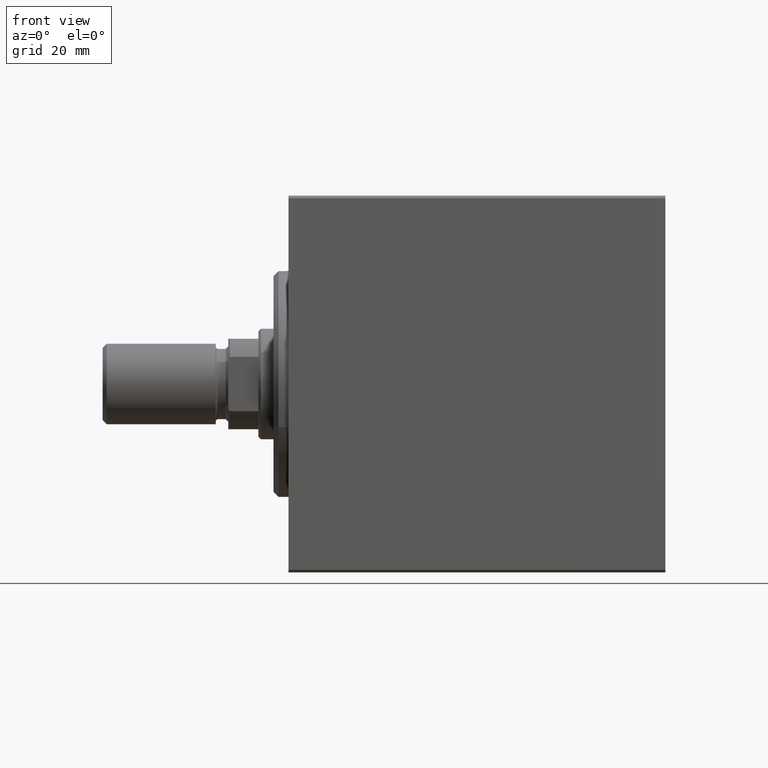
[diagram: clean part render]
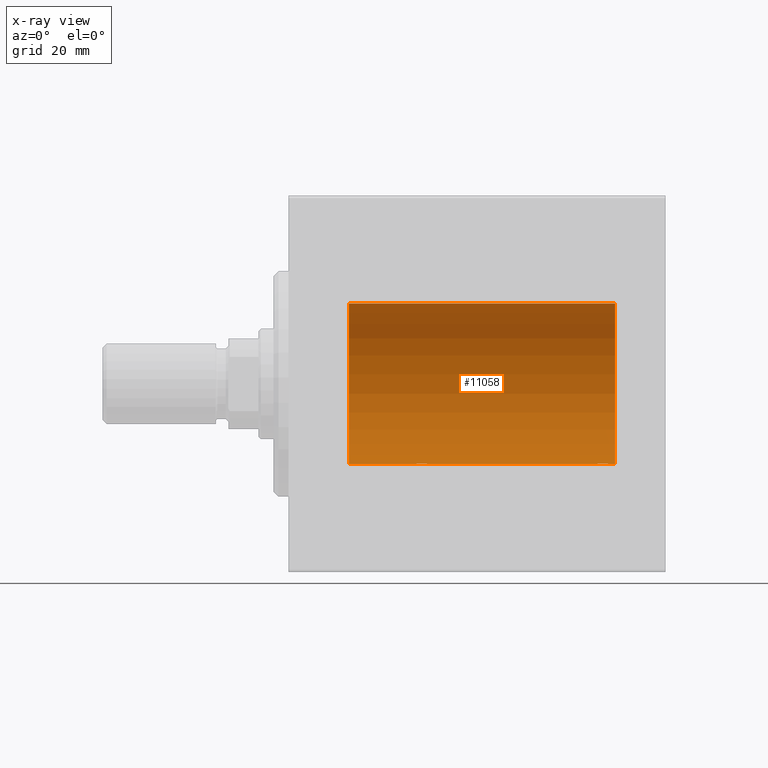
[diagram: x-ray — body ghosted, one internal face saturated and labeled with its STEP entity id]
A machine part, front view, then the same camera in x-ray: the body is ghosted and one INTERNAL B-rep face — a face not visible from any outside direction — is saturated and labeled: STEP entity #11058.
In plain terms, the highlighted cylindrical surface (partial cylindrical patch) has radius 16 mm, axis along (-1, -0, -0).
Its self-contained STEP definition (entity closure, byte-faithful):
#201 = CARTESIAN_POINT ( 'NONE',  ( 60.56388673317934490, 0.5181437283162021457, -15.99211983514074653 ) ) ;
#418 = CARTESIAN_POINT ( 'NONE',  ( 60.90948495147899422, 1.219564485341763760, -15.95382484008323054 ) ) ;
#618 = CARTESIAN_POINT ( 'NONE',  ( 27.01913097710113121, 1.935876924222081907, -15.88247600692093187 ) ) ;
#861 = CARTESIAN_POINT ( 'NONE',  ( 63.71967657442274913, 1.590393755196015002, -15.92092783521423272 ) ) ;
#1050 = VECTOR ( 'NONE', #21671, 1000.000000000000000 ) ;
#1058 = CARTESIAN_POINT ( 'NONE',  ( 24.56388673317935556, 0.5181437283162043661, -15.99211983514074653 ) ) ;
#1869 = AXIS2_PLACEMENT_3D ( 'NONE', #37067, #33923, #13248 ) ;
#1878 = B_SPLINE_CURVE_WITH_KNOTS ( 'NONE', 3,
 ( #27175, #40888, #10109, #201, #34371, #34799, #38624, #418, #13692, #10546, #7616, #4234, #34583, #28271, #24913, #3570, #17952, #10763, #10980, #861, #31436, #24467, #38394, #24247, #17726, #7837, #41335, #44464, #17280, #4005 ),
 .UNSPECIFIED., .F., .F.,
 ( 4, 2, 2, 2, 2, 2, 2, 2, 2, 2, 2, 2, 2, 2, 4 ),
 ( 1.991932713717143819E-18, 0.0003911894522871088727, 0.0007823789045742156854, 0.001173568356861322227, 0.001564757809148428769, 0.002347136713722657465, 0.003129515618296885727, 0.003520705070584010266, 0.003911894522871134372, 0.004303083975158258911, 0.004694273427445384318, 0.005085462879732508858, 0.005476652332019634264, 0.005867841784306758804, 0.006259031236593884211 ),
 .UNSPECIFIED. ) ;
#3551 = CARTESIAN_POINT ( 'NONE',  ( 26.76251583007899271, 1.987008272775795614, -15.87616016863256263 ) ) ;
#3570 = CARTESIAN_POINT ( 'NONE',  ( 63.01913097710111344, 1.935876924222080797, -15.88247600692093187 ) ) ;
#4005 = CARTESIAN_POINT ( 'NONE',  ( 64.50000000000000000, 1.959434851248285101E-15, -16.00000000000000000 ) ) ;
#4213 = CARTESIAN_POINT ( 'NONE',  ( 24.70286585251780664, 0.8874076679346751817, -15.97583181162461408 ) ) ;
#4234 = CARTESIAN_POINT ( 'NONE',  ( 61.97468243540594557, 1.947280337074165368, -15.88137861827787134 ) ) ;
#4271 = B_SPLINE_CURVE_WITH_KNOTS ( 'NONE', 3,
 ( #18248, #38919, #8133, #1058, #41961, #4213, #41532, #20644, #34349, #10527, #24890, #11188, #17931, #14328, #3551, #618, #38604, #21067, #24009, #31416, #31848, #37716, #14771, #24229, #41741, #28476, #10744, #41315, #31187, #31633 ),
 .UNSPECIFIED., .F., .F.,
 ( 4, 2, 2, 2, 2, 2, 2, 2, 2, 2, 2, 2, 2, 2, 4 ),
 ( 6.061338176617876434E-19, 0.0003911894522871146732, 0.0007823789045742288043, 0.001173568356861343261, 0.001564757809148457609, 0.002347136713722686955, 0.003129515618296916518, 0.003520705070584036721, 0.003911894522871156923, 0.004303083975158277993, 0.004694273427445398196, 0.005085462879732518399, 0.005476652332019638601, 0.005867841784306759671, 0.006259031236593879007 ),
 .UNSPECIFIED. ) ;
#4818 = CARTESIAN_POINT ( 'NONE',  ( 65.00000000000000000, 1.959434878635765131E-15, -16.00000000000000000 ) ) ;
#4999 = LINE ( 'NONE', #18715, #7482 ) ;
#5273 = AXIS2_PLACEMENT_3D ( 'NONE', #35134, #24134, #24797 ) ;
#5651 = ORIENTED_EDGE ( 'NONE', *, *, #20408, .T. ) ;
#7241 = VERTEX_POINT ( 'NONE', #24167 ) ;
#7313 = CARTESIAN_POINT ( 'NONE',  ( 24.50000000000000000, -2.103178745110437193E-15, -16.00000000000000000 ) ) ;
#7482 = VECTOR ( 'NONE', #42746, 1000.000000000000000 ) ;
#7523 = VERTEX_POINT ( 'NONE', #16711 ) ;
#7616 = CARTESIAN_POINT ( 'NONE',  ( 61.49340818440418843, 1.747750603376301060, -15.90457341008072767 ) ) ;
#7837 = CARTESIAN_POINT ( 'NONE',  ( 64.39783726498897920, 0.6445079780200581032, -15.98747331501412816 ) ) ;
#8133 = CARTESIAN_POINT ( 'NONE',  ( 24.51299475991587329, 0.2623312429553279479, -15.99836091803360105 ) ) ;
#9092 = VERTEX_POINT ( 'NONE', #28705 ) ;
#9551 = EDGE_CURVE ( 'NONE', #30642, #9092, #4271, .T. ) ;
#10109 = CARTESIAN_POINT ( 'NONE',  ( 60.51299475991586263, 0.2623312429553253389, -15.99836091803360283 ) ) ;
#10183 = ORIENTED_EDGE ( 'NONE', *, *, #25965, .F. ) ;
#10527 = CARTESIAN_POINT ( 'NONE',  ( 25.27043888260214999, 1.598790766515152173, -15.92099550861380486 ) ) ;
#10546 = CARTESIAN_POINT ( 'NONE',  ( 61.27043888260216420, 1.598790766515151063, -15.92099550861380841 ) ) ;
#10744 = CARTESIAN_POINT ( 'NONE',  ( 28.43569052926130070, 0.5198215460038754232, -15.99206840425679310 ) ) ;
#10763 = CARTESIAN_POINT ( 'NONE',  ( 63.38617757057270552, 1.797743958659260510, -15.89876304682112362 ) ) ;
#10980 = CARTESIAN_POINT ( 'NONE',  ( 63.50311247035038065, 1.735145127817755650, -15.90580292899658055 ) ) ;
#11058 = ADVANCED_FACE ( 'NONE', ( #41872 ), #20984, .F. ) ;
#11188 = CARTESIAN_POINT ( 'NONE',  ( 25.97468243540595978, 1.947280337074166923, -15.88137861827786779 ) ) ;
#12459 = VERTEX_POINT ( 'NONE', #33226 ) ;
#13248 = DIRECTION ( 'NONE',  ( 0.000000000000000000, 0.000000000000000000, 1.000000000000000000 ) ) ;
#13395 = VERTEX_POINT ( 'NONE', #44057 ) ;
#13423 = AXIS2_PLACEMENT_3D ( 'NONE', #22825, #36530, #33160 ) ;
#13692 = CARTESIAN_POINT ( 'NONE',  ( 60.99389287531753467, 1.322357532253821688, -15.94553003295876970 ) ) ;
#14106 = EDGE_CURVE ( 'NONE', #7241, #13395, #4999, .T. ) ;
#14328 = CARTESIAN_POINT ( 'NONE',  ( 26.62985308350499025, 2.000047931387146871, -15.87450182760080253 ) ) ;
#14771 = CARTESIAN_POINT ( 'NONE',  ( 28.09001528100123224, 1.220169175415120932, -15.95377581882983797 ) ) ;
#14816 = EDGE_CURVE ( 'NONE', #30642, #36165, #28633, .T. ) ;
#15878 = EDGE_CURVE ( 'NONE', #7523, #12459, #25020, .T. ) ;
#16711 = CARTESIAN_POINT ( 'NONE',  ( 65.00000000000000000, 1.959434878635765131E-15, -16.00000000000000000 ) ) ;
#17280 = CARTESIAN_POINT ( 'NONE',  ( 64.49999999999997158, 0.1305944228192322254, -15.99999999999999289 ) ) ;
#17644 = DIRECTION ( 'NONE',  ( -1.000000000000000000, -0.000000000000000000, -0.000000000000000000 ) ) ;
#17726 = CARTESIAN_POINT ( 'NONE',  ( 64.29749928605036757, 0.8866640484200128958, -15.97587307151817804 ) ) ;
#17931 = CARTESIAN_POINT ( 'NONE',  ( 26.23808537237744787, 1.999903730784159617, -15.87451999516785861 ) ) ;
#17952 = CARTESIAN_POINT ( 'NONE',  ( 63.14386968033014114, 1.898058445420889750, -15.88709929148890510 ) ) ;
#18248 = CARTESIAN_POINT ( 'NONE',  ( 24.50000000000000000, -2.103178745110437193E-15, -16.00000000000000000 ) ) ;
#18485 = ORIENTED_EDGE ( 'NONE', *, *, #20371, .T. ) ;
#18715 = CARTESIAN_POINT ( 'NONE',  ( 65.00000000000000000, 0.000000000000000000, 16.00000000000000000 ) ) ;
#18802 = ORIENTED_EDGE ( 'NONE', *, *, #9551, .T. ) ;
#19946 = CARTESIAN_POINT ( 'NONE',  ( 60.49999999999999289, -9.573340169032840992E-15, -16.00000000000000000 ) ) ;
#20371 = EDGE_CURVE ( 'NONE', #13395, #36165, #21240, .T. ) ;
#20408 = EDGE_CURVE ( 'NONE', #24640, #12459, #1878, .T. ) ;
#20644 = CARTESIAN_POINT ( 'NONE',  ( 24.90948495147901554, 1.219564485341768645, -15.95382484008323409 ) ) ;
#20984 = CYLINDRICAL_SURFACE ( 'NONE', #5273, 16.00000000000000000 ) ;
#21010 = CARTESIAN_POINT ( 'NONE',  ( 65.00000000000000000, 1.959434878635765131E-15, -16.00000000000000000 ) ) ;
#21067 = CARTESIAN_POINT ( 'NONE',  ( 27.38617757057268420, 1.797743958659262731, -15.89876304682111652 ) ) ;
#21240 = CIRCLE ( 'NONE', #1869, 16.00000000000000000 ) ;
#21671 = DIRECTION ( 'NONE',  ( -1.000000000000000000, -0.000000000000000000, -0.000000000000000000 ) ) ;
#21807 = EDGE_CURVE ( 'NONE', #7241, #7523, #29240, .T. ) ;
#22097 = CARTESIAN_POINT ( 'NONE',  ( 65.00000000000000000, 1.959434878635765131E-15, -16.00000000000000000 ) ) ;
#22825 = CARTESIAN_POINT ( 'NONE',  ( 65.00000000000000000, 0.000000000000000000, 0.000000000000000000 ) ) ;
#24009 = CARTESIAN_POINT ( 'NONE',  ( 27.50311247035038775, 1.735145127817748323, -15.90580292899658410 ) ) ;
#24134 = DIRECTION ( 'NONE',  ( -1.000000000000000000, -0.000000000000000000, -0.000000000000000000 ) ) ;
#24167 = CARTESIAN_POINT ( 'NONE',  ( 65.00000000000000000, 0.000000000000000000, 16.00000000000000000 ) ) ;
#24229 = CARTESIAN_POINT ( 'NONE',  ( 28.23482670674955486, 1.003662148334367954, -15.96885838080211073 ) ) ;
#24247 = CARTESIAN_POINT ( 'NONE',  ( 64.23482670674952999, 1.003662148334373283, -15.96885838080210362 ) ) ;
#24383 = LINE ( 'NONE', #21010, #38631 ) ;
#24467 = CARTESIAN_POINT ( 'NONE',  ( 64.00737160312429808, 1.321075116345888256, -15.94564302722882232 ) ) ;
#24640 = VERTEX_POINT ( 'NONE', #19946 ) ;
#24797 = DIRECTION ( 'NONE',  ( 0.000000000000000000, 0.000000000000000000, 1.000000000000000000 ) ) ;
#24890 = CARTESIAN_POINT ( 'NONE',  ( 25.49340818440419199, 1.747750603376302614, -15.90457341008072412 ) ) ;
#24913 = CARTESIAN_POINT ( 'NONE',  ( 62.76251583007899626, 1.987008272775793838, -15.87616016863256263 ) ) ;
#25020 = LINE ( 'NONE', #22097, #27620 ) ;
#25965 = EDGE_CURVE ( 'NONE', #24640, #9092, #24383, .T. ) ;
#27175 = CARTESIAN_POINT ( 'NONE',  ( 60.49999999999999289, -9.573340169032840992E-15, -16.00000000000000000 ) ) ;
#27620 = VECTOR ( 'NONE', #32875, 1000.000000000000000 ) ;
#28231 = ORIENTED_EDGE ( 'NONE', *, *, #14106, .T. ) ;
#28271 = CARTESIAN_POINT ( 'NONE',  ( 62.62985308350498315, 2.000047931387145983, -15.87450182760079898 ) ) ;
#28476 = CARTESIAN_POINT ( 'NONE',  ( 28.39783726498895433, 0.6445079780200565489, -15.98747331501412106 ) ) ;
#28633 = LINE ( 'NONE', #4818, #1050 ) ;
#28705 = CARTESIAN_POINT ( 'NONE',  ( 28.49999999999999645, 1.959434851238818770E-15, -16.00000000000000000 ) ) ;
#29240 = CIRCLE ( 'NONE', #13423, 16.00000000000000000 ) ;
#29515 = ORIENTED_EDGE ( 'NONE', *, *, #14816, .F. ) ;
#30642 = VERTEX_POINT ( 'NONE', #7313 ) ;
#31187 = CARTESIAN_POINT ( 'NONE',  ( 28.49999999999999645, 0.1305944228192321699, -16.00000000000000000 ) ) ;
#31416 = CARTESIAN_POINT ( 'NONE',  ( 27.71967657442277400, 1.590393755196007008, -15.92092783521424337 ) ) ;
#31436 = CARTESIAN_POINT ( 'NONE',  ( 63.82075824828930877, 1.507649250492136606, -15.92908549642226745 ) ) ;
#31633 = CARTESIAN_POINT ( 'NONE',  ( 28.49999999999999645, 1.959434851238818770E-15, -16.00000000000000000 ) ) ;
#31824 = CARTESIAN_POINT ( 'NONE',  ( 11.99999999999999645, 1.959434878635765131E-15, -16.00000000000000000 ) ) ;
#31848 = CARTESIAN_POINT ( 'NONE',  ( 27.82075824828932653, 1.507649250492136606, -15.92908549642227101 ) ) ;
#32875 = DIRECTION ( 'NONE',  ( -1.000000000000000000, -0.000000000000000000, -0.000000000000000000 ) ) ;
#33160 = DIRECTION ( 'NONE',  ( 0.000000000000000000, 0.000000000000000000, 1.000000000000000000 ) ) ;
#33226 = CARTESIAN_POINT ( 'NONE',  ( 64.50000000000000000, 1.959434851248285101E-15, -16.00000000000000000 ) ) ;
#33923 = DIRECTION ( 'NONE',  ( -1.000000000000000000, 0.000000000000000000, 0.000000000000000000 ) ) ;
#34349 = CARTESIAN_POINT ( 'NONE',  ( 24.99389287531754178, 1.322357532253823909, -15.94553003295877325 ) ) ;
#34371 = CARTESIAN_POINT ( 'NONE',  ( 60.60241129944407845, 0.6452446332038094257, -15.98744362947834929 ) ) ;
#34583 = CARTESIAN_POINT ( 'NONE',  ( 62.23808537237743366, 1.999903730784159173, -15.87451999516785861 ) ) ;
#34799 = CARTESIAN_POINT ( 'NONE',  ( 60.70286585251778178, 0.8874076679346716290, -15.97583181162461052 ) ) ;
#35134 = CARTESIAN_POINT ( 'NONE',  ( 65.00000000000000000, 0.000000000000000000, 0.000000000000000000 ) ) ;
#36165 = VERTEX_POINT ( 'NONE', #31824 ) ;
#36226 = ORIENTED_EDGE ( 'NONE', *, *, #15878, .F. ) ;
#36530 = DIRECTION ( 'NONE',  ( -1.000000000000000000, 0.000000000000000000, 0.000000000000000000 ) ) ;
#37067 = CARTESIAN_POINT ( 'NONE',  ( 11.99999999999999645, 0.000000000000000000, 0.000000000000000000 ) ) ;
#37716 = CARTESIAN_POINT ( 'NONE',  ( 28.00737160312429452, 1.321075116345887368, -15.94564302722882587 ) ) ;
#38348 = EDGE_LOOP ( 'NONE', ( #36226, #41407, #28231, #18485, #29515, #18802, #10183, #5651 ) ) ;
#38394 = CARTESIAN_POINT ( 'NONE',  ( 64.09001528100125711, 1.220169175415124929, -15.95377581882983975 ) ) ;
#38604 = CARTESIAN_POINT ( 'NONE',  ( 27.14386968033013758, 1.898058445420891305, -15.88709929148890510 ) ) ;
#38624 = CARTESIAN_POINT ( 'NONE',  ( 60.76431901501735666, 1.002241074716276437, -15.96895041604536125 ) ) ;
#38631 = VECTOR ( 'NONE', #17644, 1000.000000000000000 ) ;
#38919 = CARTESIAN_POINT ( 'NONE',  ( 24.50000000000000000, 0.1322838750249235862, -16.00000000000000355 ) ) ;
#40888 = CARTESIAN_POINT ( 'NONE',  ( 60.50000000000000000, 0.1322838750249188400, -15.99999999999999645 ) ) ;
#41315 = CARTESIAN_POINT ( 'NONE',  ( 28.48690924832125759, 0.2632563459770846381, -15.99834873924246814 ) ) ;
#41335 = CARTESIAN_POINT ( 'NONE',  ( 64.43569052926127938, 0.5198215460038770885, -15.99206840425679310 ) ) ;
#41407 = ORIENTED_EDGE ( 'NONE', *, *, #21807, .F. ) ;
#41532 = CARTESIAN_POINT ( 'NONE',  ( 24.76431901501738864, 1.002241074716281544, -15.96895041604536125 ) ) ;
#41741 = CARTESIAN_POINT ( 'NONE',  ( 28.29749928605040665, 0.8866640484200122296, -15.97587307151818514 ) ) ;
#41872 = FACE_OUTER_BOUND ( 'NONE', #38348, .T. ) ;
#41961 = CARTESIAN_POINT ( 'NONE',  ( 24.60241129944407135, 0.6452446332038127563, -15.98744362947834574 ) ) ;
#42746 = DIRECTION ( 'NONE',  ( -1.000000000000000000, -0.000000000000000000, -0.000000000000000000 ) ) ;
#44057 = CARTESIAN_POINT ( 'NONE',  ( 11.99999999999999645, 0.000000000000000000, 16.00000000000000000 ) ) ;
#44464 = CARTESIAN_POINT ( 'NONE',  ( 64.48690924832126825, 0.2632563459770859149, -15.99834873924246459 ) ) ;